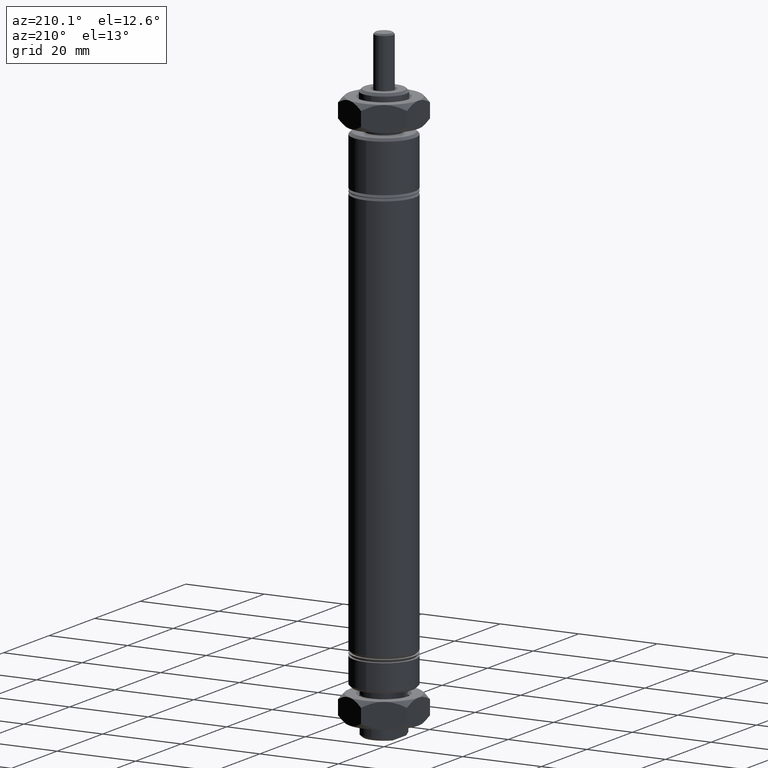
[diagram: clean part render]
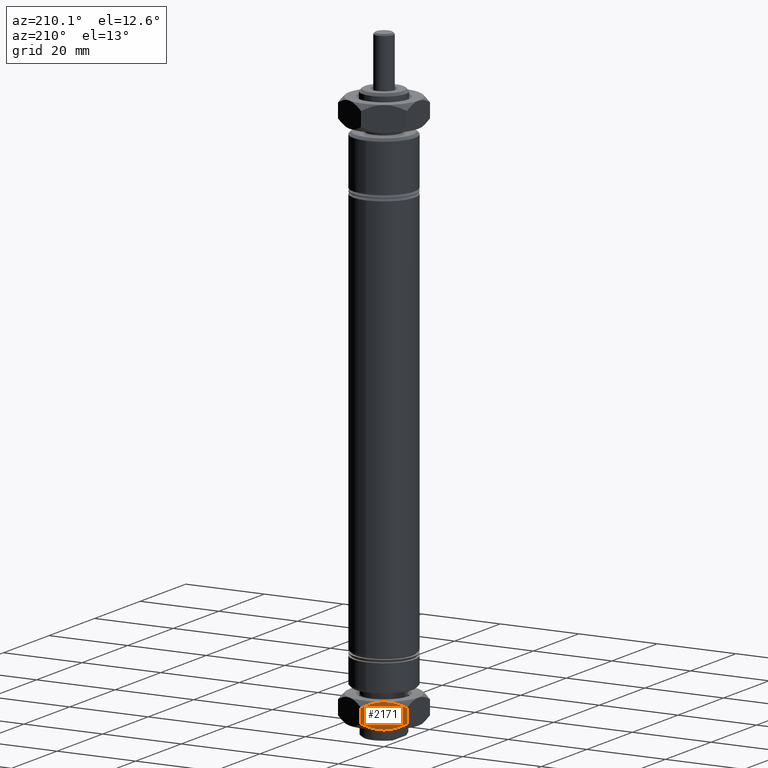
[diagram: same view with one face highlighted and labeled with its STEP entity id]
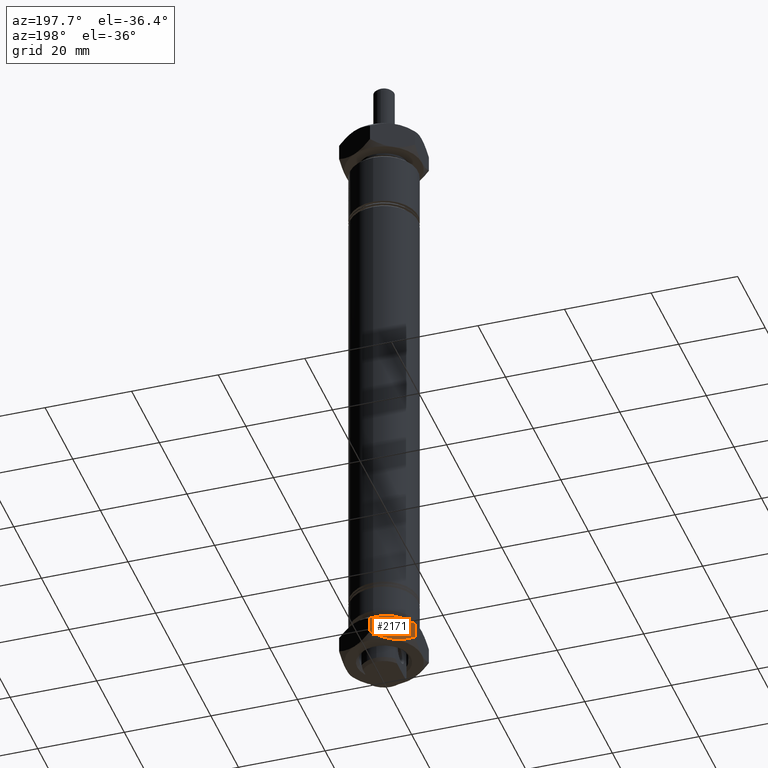
[diagram: same view with one face highlighted and labeled with its STEP entity id]
A machine part, auxiliary view. The second image highlights one B-rep face of the part: STEP entity #2171.
A second angle (auxiliary view) of the same face is appended — the face is thin or edge-on in the first view.
In plain terms, the highlighted planar face has unit normal (0.5, -0.866, 0).
Its self-contained STEP definition (entity closure, byte-faithful):
#86 = CARTESIAN_POINT ( 'NONE',  ( -0.1420576345235314600, 0.3163546722082395400, 0.1236306849751667200 ) ) ;
#122 = CARTESIAN_POINT ( 'NONE',  ( -0.2902868451560328700, 0.2307744975477988600, -0.1005168037935564700 ) ) ;
#165 = VERTEX_POINT ( 'NONE', #3579 ) ;
#212 = CARTESIAN_POINT ( 'NONE',  ( -0.3179808415510362900, 0.2147853612742072500, 0.08722783266294857600 ) ) ;
#392 = CARTESIAN_POINT ( 'NONE',  ( -0.1724999999999999000, 0.2987787643056313300, 0.1250000000000000000 ) ) ;
#407 = DIRECTION ( 'NONE',  ( -0.0000000000000000000, -0.0000000000000000000, -1.000000000000000000 ) ) ;
#432 = CARTESIAN_POINT ( 'NONE',  ( -0.2327215226736320800, 0.2640098519790006800, -0.1184725312384875300 ) ) ;
#550 = EDGE_CURVE ( 'NONE', #1508, #2961, #1917, .T. ) ;
#627 = FACE_OUTER_BOUND ( 'NONE', #1141, .T. ) ;
#710 = PLANE ( 'NONE',  #1424 ) ;
#754 = CARTESIAN_POINT ( 'NONE',  ( -0.1876081575577622000, 0.2900560654726980800, -0.1249999999999999600 ) ) ;
#790 = EDGE_CURVE ( 'NONE', #3443, #165, #3171, .T. ) ;
#982 = CARTESIAN_POINT ( 'NONE',  ( -9.857707340794954600E-018, 0.3983716857408416400, 0.1250000000000000000 ) ) ;
#1030 = DIRECTION ( 'NONE',  ( 0.8660254037844388200, 0.4999999999999998300, 0.0000000000000000000 ) ) ;
#1141 = EDGE_LOOP ( 'NONE', ( #3265, #3599, #2170, #1188, #3498, #2468 ) ) ;
#1154 = CARTESIAN_POINT ( 'NONE',  ( -3.414809992080329000E-017, 0.3983716857408416400, 0.07162831425915830400 ) ) ;
#1188 = ORIENTED_EDGE ( 'NONE', *, *, #790, .F. ) ;
#1229 = CARTESIAN_POINT ( 'NONE',  ( -0.05483035075294464400, 0.3667153679738676100, -0.1006089711357348000 ) ) ;
#1324 = CARTESIAN_POINT ( 'NONE',  ( -0.02705047038278055400, 0.3827540893836373100, 0.08724591061636261000 ) ) ;
#1381 = VERTEX_POINT ( 'NONE', #2676 ) ;
#1424 = AXIS2_PLACEMENT_3D ( 'NONE', #2261, #2888, #1030 ) ;
#1464 = VERTEX_POINT ( 'NONE', #3013 ) ;
#1508 = VERTEX_POINT ( 'NONE', #2741 ) ;
#1546 = CARTESIAN_POINT ( 'NONE',  ( -3.414809992080329000E-017, 0.3983716857408416400, -0.07162831425915827700 ) ) ;
#1633 = LINE ( 'NONE', #982, #2363 ) ;
#1636 = CARTESIAN_POINT ( 'NONE',  ( -0.05471315484396702800, 0.3667830310634635500, 0.1005168037935566200 ) ) ;
#1671 = CARTESIAN_POINT ( 'NONE',  ( -0.3450000000000000300, 0.1991858428704205700, -0.07162831425915827700 ) ) ;
#1767 = CARTESIAN_POINT ( 'NONE',  ( -0.1724999999999999000, 0.2987787643056313300, 0.1250000000000000000 ) ) ;
#1830 = VECTOR ( 'NONE', #407, 39.37007874015748100 ) ;
#1839 = CARTESIAN_POINT ( 'NONE',  ( -0.1724999999999998800, 0.2987787643056312700, -0.1250000000000000000 ) ) ;
#1900 = EDGE_CURVE ( 'NONE', #165, #1464, #2527, .T. ) ;
#1917 = B_SPLINE_CURVE_WITH_KNOTS ( 'NONE', 3,
 ( #1671, #1988, #122, #2307, #432, #2616, #754, #2934 ),
 .UNSPECIFIED., .F., .F.,
 ( 4, 2, 2, 4 ),
 ( 2.544313503982861800E-007, 0.002622476372629343100, 0.003933587343268815000, 0.005244698313908287300 ),
 .UNSPECIFIED. ) ;
#1951 = CARTESIAN_POINT ( 'NONE',  ( -0.1122784773263678400, 0.3335476766322619200, 0.1184725312384875800 ) ) ;
#1988 = CARTESIAN_POINT ( 'NONE',  ( -0.3179495296172195100, 0.2148034392276251500, -0.08724591061636251300 ) ) ;
#2080 = CARTESIAN_POINT ( 'NONE',  ( -0.2901696492470552900, 0.2308421606373950700, 0.1006089711357348200 ) ) ;
#2153 = CARTESIAN_POINT ( 'NONE',  ( -0.1424953358167920200, 0.3161019652487507300, -0.1249999999999999200 ) ) ;
#2170 = ORIENTED_EDGE ( 'NONE', *, *, #1900, .F. ) ;
#2171 = ADVANCED_FACE ( 'NONE', ( #627 ), #710, .F. ) ;
#2261 = CARTESIAN_POINT ( 'NONE',  ( -0.3450000000000000300, 0.1991858428704208800, 0.1250000000000000000 ) ) ;
#2263 = CARTESIAN_POINT ( 'NONE',  ( -0.1573918424422376400, 0.3075014631385646300, 0.1249999999999999600 ) ) ;
#2307 = CARTESIAN_POINT ( 'NONE',  ( -0.2473012750445926200, 0.2555922280229086000, -0.1147058466047357100 ) ) ;
#2363 = VECTOR ( 'NONE', #3137, 39.37007874015748100 ) ;
#2401 = CARTESIAN_POINT ( 'NONE',  ( -0.3450000000000000300, 0.1991858428704205700, 0.07162831425915830400 ) ) ;
#2468 = ORIENTED_EDGE ( 'NONE', *, *, #2582, .F. ) ;
#2527 = B_SPLINE_CURVE_WITH_KNOTS ( 'NONE', 3,
 ( #1767, #3641, #3971, #2080, #212, #2401 ),
 .UNSPECIFIED., .F., .F.,
 ( 4, 2, 4 ),
 ( 0.005244698313908280300, 0.007848552836245147700, 0.01045240735858201500 ),
 .UNSPECIFIED. ) ;
#2582 = EDGE_CURVE ( 'NONE', #2961, #1381, #3147, .T. ) ;
#2596 = CARTESIAN_POINT ( 'NONE',  ( -0.3450000000000000300, 0.1991858428704208800, 0.1250000000000000000 ) ) ;
#2616 = CARTESIAN_POINT ( 'NONE',  ( -0.2029423654764684600, 0.2812028564030232800, -0.1236306849751666000 ) ) ;
#2666 = LINE ( 'NONE', #2596, #1830 ) ;
#2676 = CARTESIAN_POINT ( 'NONE',  ( -3.414809992080329000E-017, 0.3983716857408416400, -0.07162831425915827700 ) ) ;
#2741 = CARTESIAN_POINT ( 'NONE',  ( -0.3450000000000000300, 0.1991858428704205700, -0.07162831425915827700 ) ) ;
#2888 = DIRECTION ( 'NONE',  ( 0.4999999999999998300, -0.8660254037844388200, 0.0000000000000000000 ) ) ;
#2934 = CARTESIAN_POINT ( 'NONE',  ( -0.1724999999999998800, 0.2987787643056312700, -0.1250000000000000000 ) ) ;
#2961 = VERTEX_POINT ( 'NONE', #3176 ) ;
#3013 = CARTESIAN_POINT ( 'NONE',  ( -0.3450000000000000300, 0.1991858428704205700, 0.07162831425915830400 ) ) ;
#3026 = EDGE_CURVE ( 'NONE', #1464, #1508, #2666, .T. ) ;
#3087 = CARTESIAN_POINT ( 'NONE',  ( -0.1130008622559701300, 0.3331306074986975500, -0.1197024118602236000 ) ) ;
#3137 = DIRECTION ( 'NONE',  ( -0.0000000000000000000, -0.0000000000000000000, -1.000000000000000000 ) ) ;
#3147 = B_SPLINE_CURVE_WITH_KNOTS ( 'NONE', 3,
 ( #1839, #2153, #3087, #1229, #3412, #1546 ),
 .UNSPECIFIED., .F., .F.,
 ( 4, 2, 4 ),
 ( 0.005244698313908287300, 0.007848552836245149500, 0.01045240735858201200 ),
 .UNSPECIFIED. ) ;
#3171 = B_SPLINE_CURVE_WITH_KNOTS ( 'NONE', 3,
 ( #3509, #1324, #1636, #3825, #1951, #86, #2263, #392 ),
 .UNSPECIFIED., .F., .F.,
 ( 4, 2, 2, 4 ),
 ( 2.544313504005197000E-007, 0.002622476372629340500, 0.003933587343268810600, 0.005244698313908280300 ),
 .UNSPECIFIED. ) ;
#3176 = CARTESIAN_POINT ( 'NONE',  ( -0.1724999999999998800, 0.2987787643056312700, -0.1250000000000000000 ) ) ;
#3265 = ORIENTED_EDGE ( 'NONE', *, *, #550, .F. ) ;
#3412 = CARTESIAN_POINT ( 'NONE',  ( -0.02701915844896379800, 0.3827721673370552700, -0.08722783266294850700 ) ) ;
#3443 = VERTEX_POINT ( 'NONE', #1154 ) ;
#3498 = ORIENTED_EDGE ( 'NONE', *, *, #3715, .T. ) ;
#3509 = CARTESIAN_POINT ( 'NONE',  ( -3.414809992080329000E-017, 0.3983716857408416400, 0.07162831425915830400 ) ) ;
#3579 = CARTESIAN_POINT ( 'NONE',  ( -0.1724999999999999000, 0.2987787643056313300, 0.1250000000000000000 ) ) ;
#3599 = ORIENTED_EDGE ( 'NONE', *, *, #3026, .F. ) ;
#3641 = CARTESIAN_POINT ( 'NONE',  ( -0.2025046641832077800, 0.2814555633625118200, 0.1250000000000000000 ) ) ;
#3715 = EDGE_CURVE ( 'NONE', #3443, #1381, #1633, .T. ) ;
#3825 = CARTESIAN_POINT ( 'NONE',  ( -0.09769872495540739300, 0.3419653005883541700, 0.1147058466047357800 ) ) ;
#3971 = CARTESIAN_POINT ( 'NONE',  ( -0.2319991377440297800, 0.2644269211125650500, 0.1197024118602236200 ) ) ;